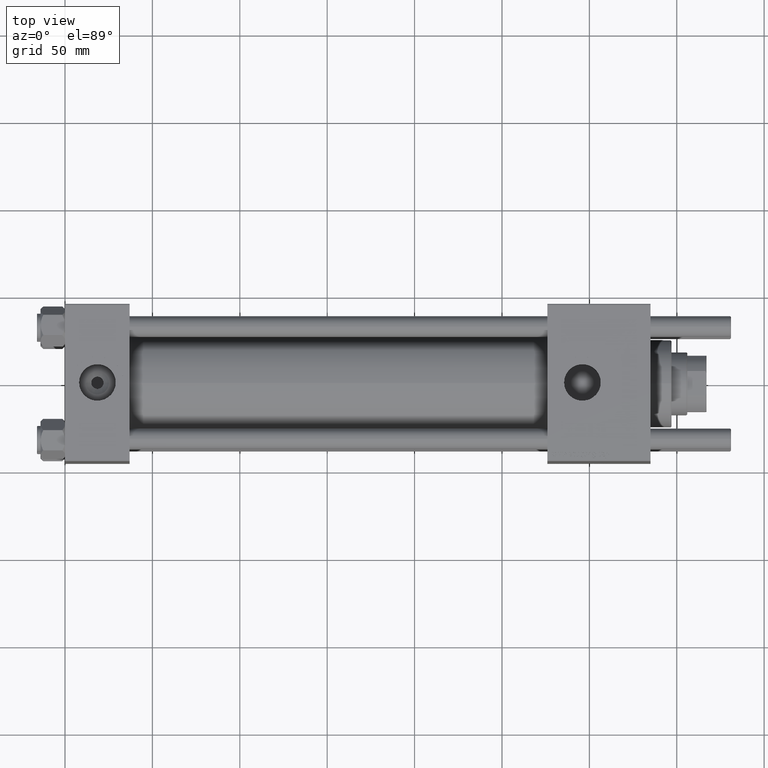
[diagram: clean part render]
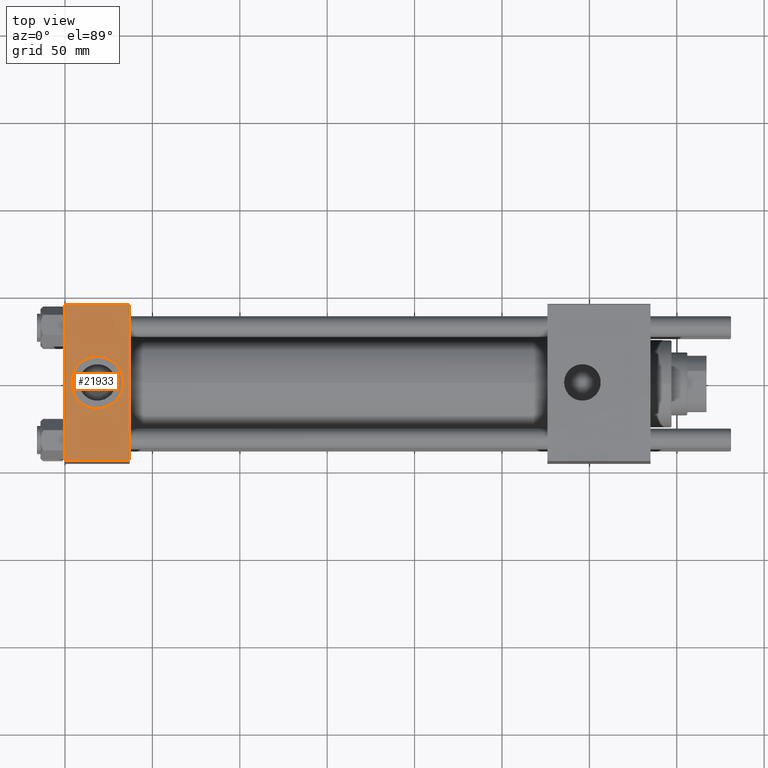
[diagram: same view with one face highlighted and labeled with its STEP entity id]
A machine part, top view. The second image highlights one B-rep face of the part: STEP entity #21933.
In plain terms, the highlighted planar face has unit normal (0, 0, -1).
Its self-contained STEP definition (entity closure, byte-faithful):
#92 = DIRECTION ( 'NONE',  ( -1.000000000000000000, 0.000000000000000000, 0.000000000000000000 ) ) ;
#1876 = DIRECTION ( 'NONE',  ( 1.000000000000000000, 0.000000000000000000, 0.000000000000000000 ) ) ;
#1993 = LINE ( 'NONE', #25683, #20632 ) ;
#2169 = DIRECTION ( 'NONE',  ( 0.000000000000000000, 0.000000000000000000, 1.000000000000000000 ) ) ;
#3698 = CARTESIAN_POINT ( 'NONE',  ( 18.50000000000000000, -8.673617379884038628E-15, 45.00000000000000711 ) ) ;
#6266 = DIRECTION ( 'NONE',  ( 0.000000000000000000, 1.000000000000000000, 1.541976423090495633E-16 ) ) ;
#7448 = EDGE_CURVE ( 'NONE', #17908, #48471, #14150, .T. ) ;
#9545 = ORIENTED_EDGE ( 'NONE', *, *, #42310, .T. ) ;
#9853 = CARTESIAN_POINT ( 'NONE',  ( 0.000000000000000000, -44.49999999999995737, 45.00000000000000000 ) ) ;
#10279 = AXIS2_PLACEMENT_3D ( 'NONE', #29103, #2169, #1876 ) ;
#11280 = FACE_BOUND ( 'NONE', #31521, .T. ) ;
#13428 = AXIS2_PLACEMENT_3D ( 'NONE', #24033, #47382, #6266 ) ;
#14150 = LINE ( 'NONE', #49940, #20335 ) ;
#14919 = CARTESIAN_POINT ( 'NONE',  ( 0.000000000000000000, 44.99999999999998579, 45.00000000000001421 ) ) ;
#15383 = VERTEX_POINT ( 'NONE', #9853 ) ;
#16542 = CARTESIAN_POINT ( 'NONE',  ( 33.50000000000000000, -8.673617379884038628E-15, 45.00000000000000711 ) ) ;
#17846 = CARTESIAN_POINT ( 'NONE',  ( 0.000000000000000000, 44.49999999999998579, 45.00000000000001421 ) ) ;
#17852 = CARTESIAN_POINT ( 'NONE',  ( 0.000000000000000000, 44.49999999999998579, 45.00000000000001421 ) ) ;
#17908 = VERTEX_POINT ( 'NONE', #30077 ) ;
#18479 = CARTESIAN_POINT ( 'NONE',  ( 37.00000000000000000, -44.49999999999995737, 45.00000000000000000 ) ) ;
#18522 = EDGE_CURVE ( 'NONE', #23006, #40669, #41336, .T. ) ;
#19156 = DIRECTION ( 'NONE',  ( 0.000000000000000000, -1.000000000000000000, -1.541976423090495387E-16 ) ) ;
#20335 = VECTOR ( 'NONE', #19156, 1000.000000000000000 ) ;
#20632 = VECTOR ( 'NONE', #38700, 1000.000000000000000 ) ;
#21006 = ORIENTED_EDGE ( 'NONE', *, *, #21361, .T. ) ;
#21361 = EDGE_CURVE ( 'NONE', #21630, #15383, #49853, .T. ) ;
#21630 = VERTEX_POINT ( 'NONE', #17852 ) ;
#21933 = ADVANCED_FACE ( 'NONE', ( #11280, #51193 ), #29346, .F. ) ;
#23006 = VERTEX_POINT ( 'NONE', #16542 ) ;
#23471 = CIRCLE ( 'NONE', #10279, 15.00000000000000355 ) ;
#23697 = ORIENTED_EDGE ( 'NONE', *, *, #7448, .F. ) ;
#24033 = CARTESIAN_POINT ( 'NONE',  ( 37.00000000000000000, 44.99999999999998579, 45.00000000000001421 ) ) ;
#25683 = CARTESIAN_POINT ( 'NONE',  ( 37.00000000000000000, -44.49999999999998579, 45.00000000000000000 ) ) ;
#26497 = DIRECTION ( 'NONE',  ( 0.000000000000000000, 0.000000000000000000, 1.000000000000000000 ) ) ;
#29103 = CARTESIAN_POINT ( 'NONE',  ( 18.50000000000000000, -8.673617379884038628E-15, 45.00000000000000711 ) ) ;
#29346 = PLANE ( 'NONE',  #13428 ) ;
#29733 = CARTESIAN_POINT ( 'NONE',  ( 3.499999999999997780, -6.836647181163008250E-15, 45.00000000000000711 ) ) ;
#30077 = CARTESIAN_POINT ( 'NONE',  ( 37.00000000000000000, 44.49999999999998579, 45.00000000000001421 ) ) ;
#31521 = EDGE_LOOP ( 'NONE', ( #33240, #50450 ) ) ;
#33240 = ORIENTED_EDGE ( 'NONE', *, *, #18522, .F. ) ;
#37103 = ORIENTED_EDGE ( 'NONE', *, *, #46184, .T. ) ;
#38700 = DIRECTION ( 'NONE',  ( 1.000000000000000000, 0.000000000000000000, 0.000000000000000000 ) ) ;
#40080 = DIRECTION ( 'NONE',  ( 1.000000000000000000, 0.000000000000000000, 0.000000000000000000 ) ) ;
#40669 = VERTEX_POINT ( 'NONE', #29733 ) ;
#41336 = CIRCLE ( 'NONE', #41491, 15.00000000000000355 ) ;
#41491 = AXIS2_PLACEMENT_3D ( 'NONE', #3698, #26497, #40080 ) ;
#42310 = EDGE_CURVE ( 'NONE', #17908, #21630, #53890, .T. ) ;
#45066 = VECTOR ( 'NONE', #92, 1000.000000000000000 ) ;
#46184 = EDGE_CURVE ( 'NONE', #15383, #48471, #1993, .T. ) ;
#47382 = DIRECTION ( 'NONE',  ( 0.000000000000000000, 1.541976423090495633E-16, -1.000000000000000000 ) ) ;
#48471 = VERTEX_POINT ( 'NONE', #18479 ) ;
#49278 = VECTOR ( 'NONE', #54825, 1000.000000000000000 ) ;
#49853 = LINE ( 'NONE', #14919, #49278 ) ;
#49940 = CARTESIAN_POINT ( 'NONE',  ( 37.00000000000000000, 44.99999999999998579, 45.00000000000001421 ) ) ;
#50450 = ORIENTED_EDGE ( 'NONE', *, *, #52624, .F. ) ;
#50525 = EDGE_LOOP ( 'NONE', ( #21006, #37103, #23697, #9545 ) ) ;
#51193 = FACE_OUTER_BOUND ( 'NONE', #50525, .T. ) ;
#52624 = EDGE_CURVE ( 'NONE', #40669, #23006, #23471, .T. ) ;
#53890 = LINE ( 'NONE', #17846, #45066 ) ;
#54825 = DIRECTION ( 'NONE',  ( 0.000000000000000000, -1.000000000000000000, -1.541976423090495387E-16 ) ) ;